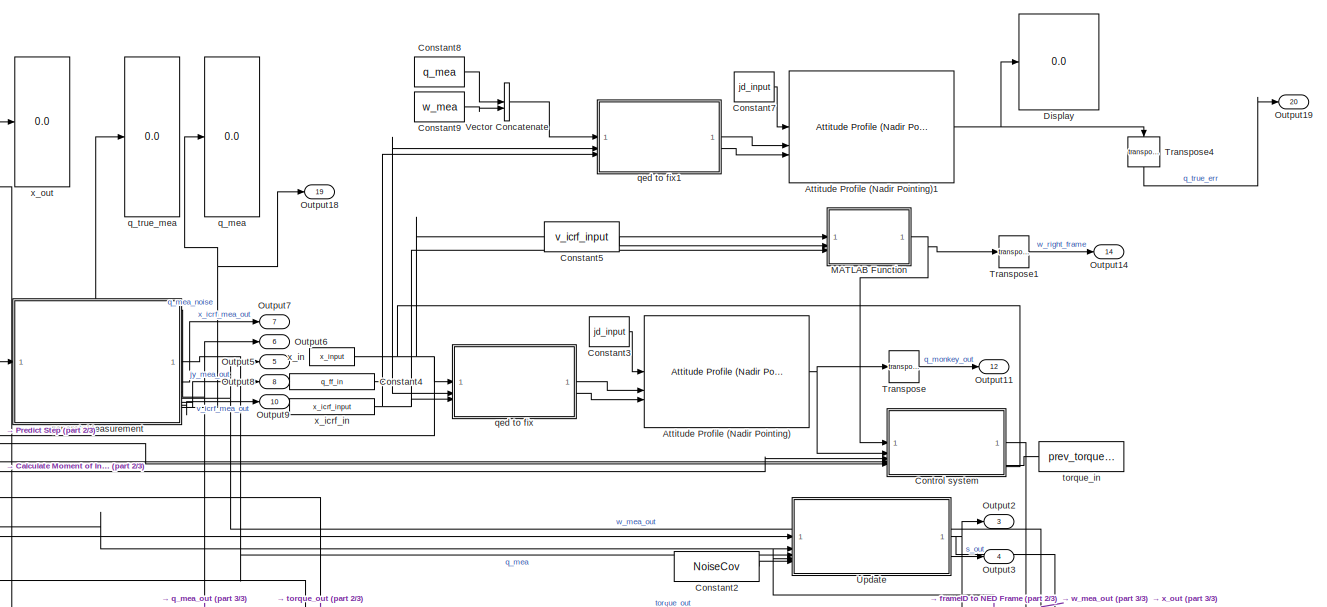
[diagram: root canvas - part 1/3, top center region]
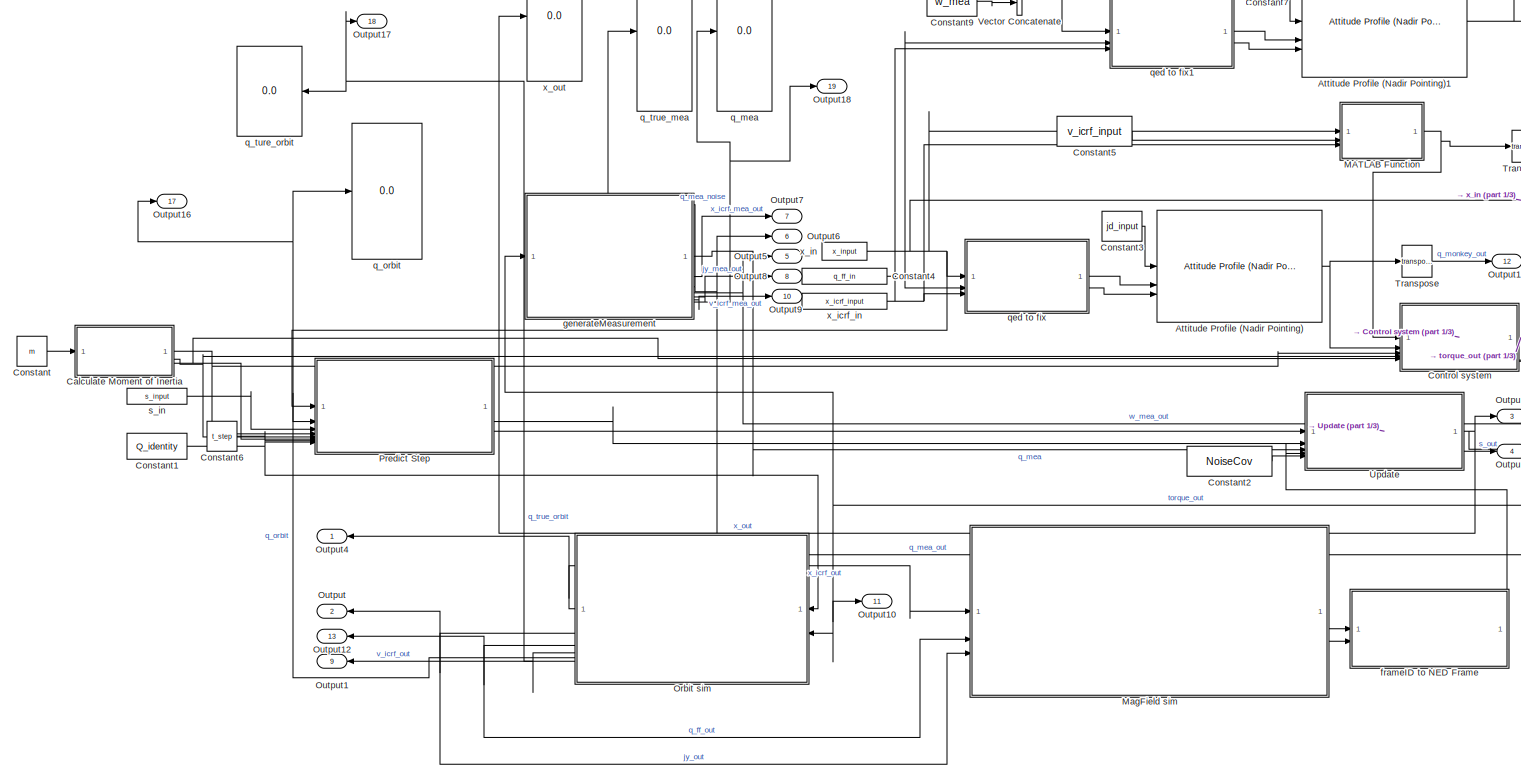
[diagram: root canvas - part 2/3, full width, middle band]
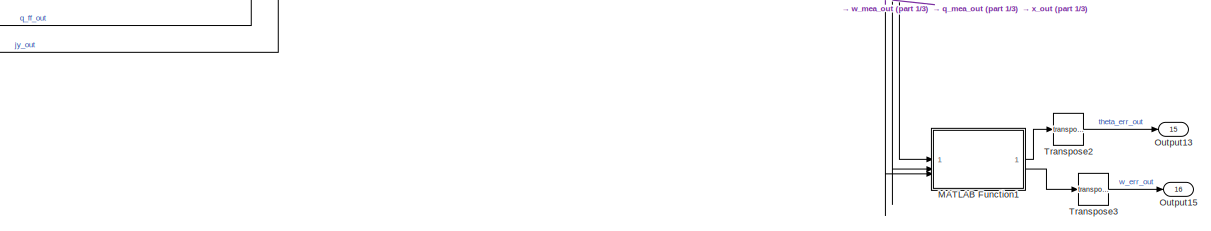
[diagram: root canvas - part 3/3, bottom right region]
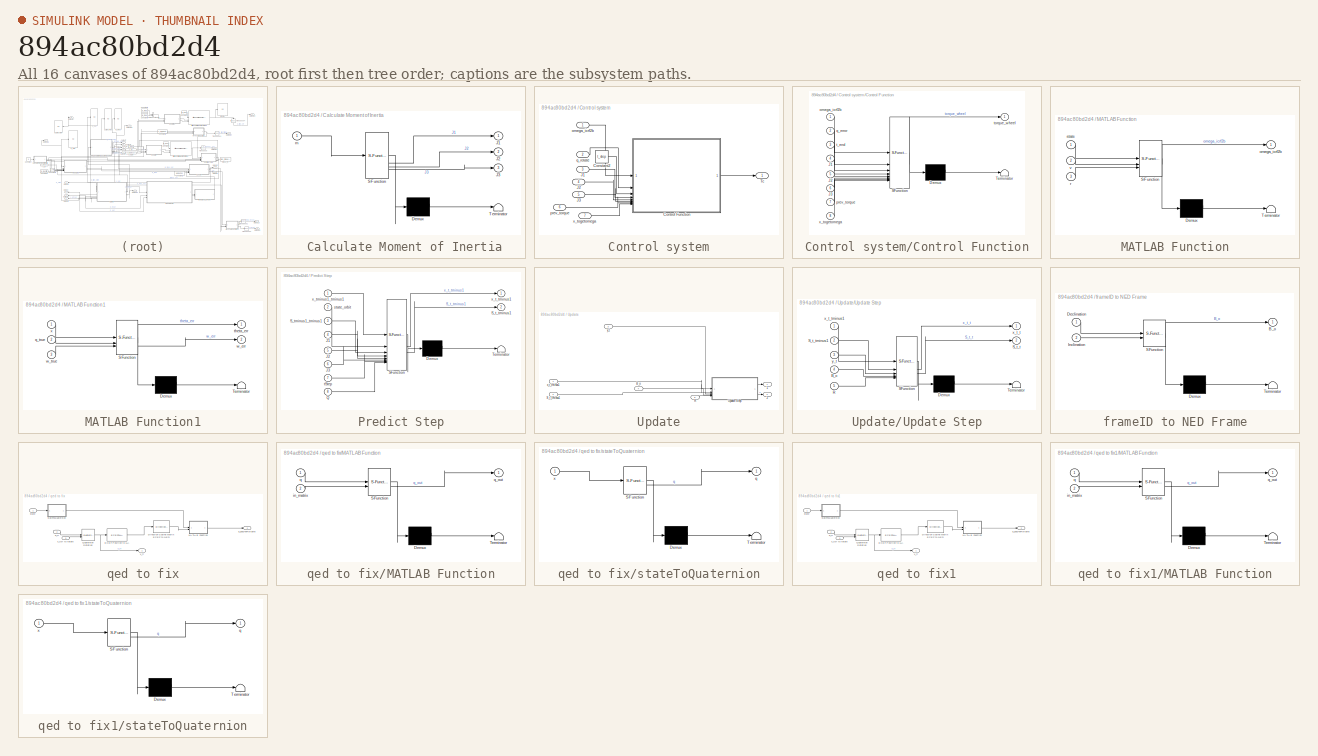
[diagram: thumbnail index - all 16 canvases of the model, root first then tree order]
MODEL slx_894ac80bd2d4
KIND model
CONFIG AbsTol = auto
CONFIG EnableMultiTasking = off
CONFIG FixedStep = 0.05
CONFIG MaxStep = auto
CONFIG MinStep = auto
CONFIG RelTol = 1e-3
CONFIG SampleTimeConstraint = Unconstrained
CONFIG SolverName = FixedStepAuto
CONFIG StartTime = 0.0
CONFIG StopTime = 0.05
WORKSPACE source: mxarray member
WORKSPACE Delta_t = 0.1
WORKSPACE J1 = 0.833333333333
WORKSPACE J2 = 1.08333333333
WORKSPACE J3 = 0.416666666667
WORKSPACE NoiseCov = [0.5 0 0 0 0 0 0 0.5 0 0 0 0 ... (36 elements, 6x6)]
WORKSPACE Orbit_Incl = 51.6
WORKSPACE Q_identity = [0.05 0 0 0 0 0 0 0 0.05 0 0 0 ... (49 elements, 7x7)]
WORKSPACE Sig: Simulink.Signal (value not decoded)
WORKSPACE Sig1: Simulink.Signal (value not decoded)
WORKSPACE controlRun = 1
WORKSPACE jd_input = 2458850.00006
WORKSPACE m = 100
WORKSPACE n = 7
WORKSPACE prev_torque_input = [4.02125178476e-05 -0.000240074266532 0.000969921285444]
WORKSPACE q_ff_in = [0.768162333731 -0.000607721012165 0.00073835510125 -0.64025441392]
WORKSPACE q_mea = [0.201779427007 -0.600440780835 -0.499157225709 -0.59126812494]
WORKSPACE s_input = [0.0589841167561 0.00581351479597 0.00668594935891 -0.00630732370495 0.000663483023899 0.00184880164458 0.000570366934632 0.00581351479597 0.0937594050574 0.0387635496011 -0.0430050360951 0.000555134956355 ... (49 elements, 7x7)]
WORKSPACE s_input_cons = [1.94870414 1.25588909 1.4416761 1.0780205 1.49168854 1.53894753 1.37981514 1.25588909 2.30599344 1.57766712 1.62980068 1.46050557 ... (49 elements, 7x7)]
WORKSPACE savedTorque = [0.000657725470141 -0.000240297847613 -0.000713900658607]
WORKSPACE t_step = 0.05
WORKSPACE v_icrf_input = [-949481.777156 -889776.036157 4371.77407199]
WORKSPACE w_mea = [0.000477892534013 0.0173144207751 0.0745768968359]
WORKSPACE x_icrf_input = [-3388291.56974 3592736.49121 -4663347.3899]
WORKSPACE x_icrf_input_cons = [3649700 3308200 -4676600]
WORKSPACE x_input = [0.411501608148 -0.308732372219 -0.291057996427 -0.806620103613 -0.492262126493 0.179846356615 0.534305378558]
WORKSPACE x_input_cons = [0.2 0.6 0.5 0.59160797831 0.1 0.4 0.9]
BLOCK [SubSystem]  Calculate Moment of Inertia
  ErrorFcn = Stateflow.Translate.translate
  PermitHierarchicalResolution = ExplicitOnly
  Priority = 10
  SFBlockType = MATLAB Function
  TreatAsAtomicUnit = on
BLOCK [Demux]  Calculate Moment of Inertia/ Demux 
  Outputs = 1
BLOCK [S-Function]  Calculate Moment of Inertia/ SFunction 
  EnableBusSupport = on
  FunctionName = sf_sfun
  PortCounts = [1 4]
  SFcnIsStateOwnerBlock = off
  SFunctionDeploymentMode = off
  Tag = Stateflow S-Function 12
BLOCK [Terminator]  Calculate Moment of Inertia/ Terminator 
BLOCK [Outport]  Calculate Moment of Inertia/J1
BLOCK [Outport]  Calculate Moment of Inertia/J2
  Port = 2
BLOCK [Outport]  Calculate Moment of Inertia/J3
  Port = 3
BLOCK [Inport]  Calculate Moment of Inertia/m
BLOCK [Reference] Attitude Profile (Nadir Pointing)  REF=aerolibsatdyn/Attitude Profile
(Nadir Pointing)
  Priority = 3
  SourceBlock = aerolibsatdyn/Attitude Profile\n(Nadir Pointing)
  SourceType = Attitude Profile
BLOCK [Reference] Attitude Profile (Nadir Pointing)1  REF=aerolibsatdyn/Attitude Profile
(Nadir Pointing)
  Priority = 3
  SourceBlock = aerolibsatdyn/Attitude Profile\n(Nadir Pointing)
  SourceType = Attitude Profile
BLOCK [Constant] Constant
  Value = m
BLOCK [Constant] Constant1
  Value = Q_identity
BLOCK [Constant] Constant2
  Value = NoiseCov
BLOCK [Constant] Constant3
  Value = jd_input
BLOCK [Constant] Constant4
  Value = q_ff_in
BLOCK [Constant] Constant5
  Value = v_icrf_input
BLOCK [Constant] Constant6
  Value = t_step
BLOCK [Constant] Constant7
  Value = jd_input
BLOCK [Constant] Constant8
  Value = q_mea
BLOCK [Constant] Constant9
  Value = w_mea
BLOCK [SubSystem] Control system
  PortSchema = {"entries":[{"content":{"sides":[{"content":{"connectorIds":["In1","In2","In3","In4","In5"]},"type":"ConnectorPlacement.EquallySpacedRectSide","uuid":"8eb5f269-cc65-4267-936a-9f0f4ccd4d18"},{"content":{"connectorIds":["Out1","In6","In7"],"side":"RIGHT"},"type":"ConnectorPlacement.EquallySpacedRectSide","uuid":"3df96c14-e4ae-45ba-8fc0-de3a9fdcf55a"},{"content":{"side":"TOP"},"type":"ConnectorPlacem...<+258ch>
  Priority = 4
BLOCK [Constant] Control system/Constant2
  Value = t_step
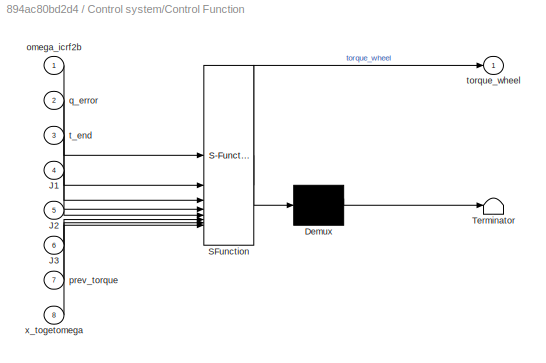
BLOCK [SubSystem] Control system/Control Function
  ErrorFcn = Stateflow.Translate.translate
  PermitHierarchicalResolution = ExplicitOnly
  SFBlockType = MATLAB Function
  TreatAsAtomicUnit = on
BLOCK [Demux] Control system/Control Function/ Demux 
  Outputs = 1
BLOCK [S-Function] Control system/Control Function/ SFunction 
  EnableBusSupport = on
  FunctionName = sf_sfun
  PortCounts = [8 2]
  SFcnIsStateOwnerBlock = off
  SFunctionDeploymentMode = off
  Tag = Stateflow S-Function 15
BLOCK [Terminator] Control system/Control Function/ Terminator 
BLOCK [Inport] Control system/Control Function/J1
  Port = 4
BLOCK [Inport] Control system/Control Function/J2
  Port = 5
BLOCK [Inport] Control system/Control Function/J3
  Port = 6
BLOCK [Inport] Control system/Control Function/omega_icrf2b
BLOCK [Inport] Control system/Control Function/prev_torque
  Port = 7
BLOCK [Inport] Control system/Control Function/q_error
  Port = 2
BLOCK [Inport] Control system/Control Function/t_end
  Port = 3
BLOCK [Outport] Control system/Control Function/torque_wheel
BLOCK [Inport] Control system/Control Function/x_togetomega
  Port = 8
BLOCK [Inport] Control system/J1
  Port = 3
BLOCK [Inport] Control system/J2
  Port = 4
BLOCK [Inport] Control system/J3
  Port = 5
BLOCK [Outport] Control system/Tc
BLOCK [Inport] Control system/omega_icrf2b
BLOCK [Inport] Control system/prev_torque
  Port = 6
BLOCK [Inport] Control system/q_rotate
  Port = 2
BLOCK [Inport] Control system/x_togetomega
  Port = 7
BLOCK [Display] Display
  Commented = on
  Decimation = 1
BLOCK [SubSystem] MATLAB Function
  ErrorFcn = Stateflow.Translate.translate
  PermitHierarchicalResolution = ExplicitOnly
  SFBlockType = MATLAB Function
  TreatAsAtomicUnit = on
BLOCK [Demux] MATLAB Function/ Demux 
  Outputs = 1
BLOCK [S-Function] MATLAB Function/ SFunction 
  EnableBusSupport = on
  FunctionName = sf_sfun
  PortCounts = [3 2]
  SFcnIsStateOwnerBlock = off
  SFunctionDeploymentMode = off
  Tag = Stateflow S-Function 7
BLOCK [Terminator] MATLAB Function/ Terminator 
BLOCK [Outport] MATLAB Function/omega_icrf2b
BLOCK [Inport] MATLAB Function/r
  Port = 3
BLOCK [Inport] MATLAB Function/state
BLOCK [Inport] MATLAB Function/v
  Port = 2
BLOCK [SubSystem] MATLAB Function1
  ErrorFcn = Stateflow.Translate.translate
  PermitHierarchicalResolution = ExplicitOnly
  SFBlockType = MATLAB Function
  TreatAsAtomicUnit = on
BLOCK [Demux] MATLAB Function1/ Demux 
  Outputs = 1
BLOCK [S-Function] MATLAB Function1/ SFunction 
  EnableBusSupport = on
  FunctionName = sf_sfun
  PortCounts = [3 3]
  SFcnIsStateOwnerBlock = off
  SFunctionDeploymentMode = off
  Tag = Stateflow S-Function 8
BLOCK [Terminator] MATLAB Function1/ Terminator 
BLOCK [Inport] MATLAB Function1/q_true
  Port = 2
BLOCK [Outport] MATLAB Function1/theta_err
BLOCK [Outport] MATLAB Function1/w_err
  Port = 2
BLOCK [Inport] MATLAB Function1/w_true
  Port = 3
BLOCK [Inport] MATLAB Function1/x
BLOCK [SubSystem] MagField sim
  Priority = 8
  ReferencedSubsystem = MagField_sim
BLOCK [SubSystem] Orbit sim
  Priority = 7
  ReferencedSubsystem = Orbit_sim
BLOCK [Outport] Output
  Port = 2
BLOCK [Outport] Output1
  NameLocation = top
  Port = 9
BLOCK [Outport] Output10
  Port = 11
BLOCK [Outport] Output11
  Port = 12
BLOCK [Outport] Output12
  Port = 13
BLOCK [Outport] Output13
  Port = 15
BLOCK [Outport] Output14
  Port = 14
BLOCK [Outport] Output15
  Port = 16
BLOCK [Outport] Output16
  Port = 17
BLOCK [Outport] Output17
  Port = 18
BLOCK [Outport] Output18
  Port = 19
BLOCK [Outport] Output19
  Port = 20
BLOCK [Outport] Output2
  Port = 3
BLOCK [Outport] Output3
  Port = 4
BLOCK [Outport] Output4
BLOCK [Outport] Output5
  Port = 5
BLOCK [Outport] Output6
  Port = 6
BLOCK [Outport] Output7
  Port = 7
BLOCK [Outport] Output8
  Port = 8
BLOCK [Outport] Output9
  Port = 10
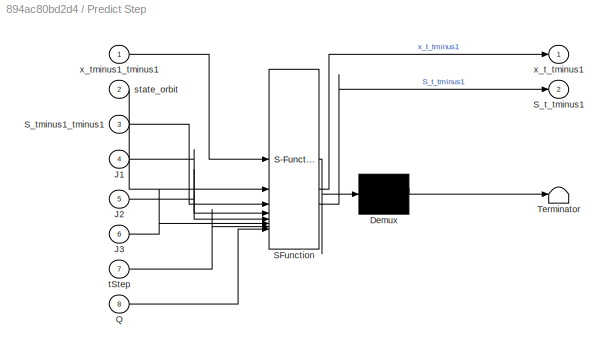
BLOCK [SubSystem] Predict Step
  ErrorFcn = Stateflow.Translate.translate
  PermitHierarchicalResolution = ExplicitOnly
  Priority = 11
  SFBlockType = MATLAB Function
  TreatAsAtomicUnit = on
BLOCK [Demux] Predict Step/ Demux 
  Outputs = 1
BLOCK [S-Function] Predict Step/ SFunction 
  EnableBusSupport = on
  FunctionName = sf_sfun
  PortCounts = [8 3]
  SFcnIsStateOwnerBlock = off
  SFunctionDeploymentMode = off
  Tag = Stateflow S-Function 2
BLOCK [Terminator] Predict Step/ Terminator 
BLOCK [Inport] Predict Step/J1
  Port = 4
BLOCK [Inport] Predict Step/J2
  Port = 5
BLOCK [Inport] Predict Step/J3
  Port = 6
BLOCK [Inport] Predict Step/Q
  Port = 8
BLOCK [Outport] Predict Step/S_t_tminus1
  Port = 2
BLOCK [Inport] Predict Step/S_tminus1_tminus1
  Port = 3
BLOCK [Inport] Predict Step/state_orbit
  Port = 2
BLOCK [Inport] Predict Step/tStep
  Port = 7
BLOCK [Outport] Predict Step/x_t_tminus1
BLOCK [Inport] Predict Step/x_tminus1_tminus1
BLOCK [Math] Transpose
  Operator = transpose
BLOCK [Math] Transpose1
  Operator = transpose
BLOCK [Math] Transpose2
  Operator = transpose
BLOCK [Math] Transpose3
  Operator = transpose
BLOCK [Math] Transpose4
  NameLocation = left
  Operator = transpose
BLOCK [SubSystem] Update
  Priority = 12
BLOCK [Outport] Update/1
BLOCK [Outport] Update/2
  Port = 2
BLOCK [Inport] Update/B_o
  Port = 4
BLOCK [Inport] Update/R
  Port = 5
BLOCK [Inport] Update/S_t_tminus1
  Port = 2
BLOCK [SubSystem] Update/Update Step
  ErrorFcn = Stateflow.Translate.translate
  PermitHierarchicalResolution = ExplicitOnly
  SFBlockType = MATLAB Function
  TreatAsAtomicUnit = on
BLOCK [Demux] Update/Update Step/ Demux 
  Outputs = 1
BLOCK [S-Function] Update/Update Step/ SFunction 
  EnableBusSupport = on
  FunctionName = sf_sfun
  PortCounts = [5 3]
  SFcnIsStateOwnerBlock = off
  SFunctionDeploymentMode = off
  Tag = Stateflow S-Function 1
BLOCK [Terminator] Update/Update Step/ Terminator 
BLOCK [Inport] Update/Update Step/B_o
  Port = 4
BLOCK [Inport] Update/Update Step/R
  Port = 5
BLOCK [Outport] Update/Update Step/S_t_t
  Port = 2
BLOCK [Inport] Update/Update Step/S_t_tminus1
  Port = 2
BLOCK [Outport] Update/Update Step/x_t_t
BLOCK [Inport] Update/Update Step/x_t_tminus1
BLOCK [Inport] Update/Update Step/y_t
  Port = 3
BLOCK [Inport] Update/x_t_tminus1
BLOCK [Inport] Update/y_t
  Port = 3
BLOCK [Concatenate] Vector Concatenate
BLOCK [SubSystem] frameID to NED Frame
  ErrorFcn = Stateflow.Translate.translate
  PermitHierarchicalResolution = ExplicitOnly
  Priority = 9
  SFBlockType = MATLAB Function
  TreatAsAtomicUnit = on
BLOCK [Demux] frameID to NED Frame/ Demux 
  Outputs = 1
BLOCK [S-Function] frameID to NED Frame/ SFunction 
  EnableBusSupport = on
  FunctionName = sf_sfun
  PortCounts = [2 2]
  SFcnIsStateOwnerBlock = off
  SFunctionDeploymentMode = off
  Tag = Stateflow S-Function 5
BLOCK [Terminator] frameID to NED Frame/ Terminator 
BLOCK [Outport] frameID to NED Frame/B_o
BLOCK [Inport] frameID to NED Frame/Declination
BLOCK [Inport] frameID to NED Frame/Inclination
  Port = 2
BLOCK [SubSystem] generateMeasurement
  Priority = 5
  ReferencedSubsystem = Measurement_sim
BLOCK [Display] q_mea
  Commented = on
  Decimation = 1
BLOCK [Display] q_orbit
  Commented = on
  Decimation = 1
BLOCK [Display] q_true_mea
  Commented = on
  Decimation = 1
BLOCK [Display] q_ture_orbit
  Commented = on
  Decimation = 1
  NameLocation = top
BLOCK [SubSystem] qed to fix
  Priority = 2
BLOCK [Reference] qed to fix/Direction Cosine Matrix ECEF to NED  REF=aerolibtransform2/Direction Cosine Matrix
ECEF to NED
  SourceBlock = aerolibtransform2/Direction Cosine Matrix\nECEF to NED
  SourceType = DCM ECEF to NED
BLOCK [ECEF2LLA] qed to fix/ECEF Position to LLA
BLOCK [SubSystem] qed to fix/MATLAB Function
  ErrorFcn = Stateflow.Translate.translate
  PermitHierarchicalResolution = ExplicitOnly
  SFBlockType = MATLAB Function
  TreatAsAtomicUnit = on
BLOCK [Demux] qed to fix/MATLAB Function/ Demux 
  Outputs = 1
BLOCK [S-Function] qed to fix/MATLAB Function/ SFunction 
  EnableBusSupport = on
  FunctionName = sf_sfun
  PortCounts = [2 2]
  SFcnIsStateOwnerBlock = off
  SFunctionDeploymentMode = off
  Tag = Stateflow S-Function 3
BLOCK [Terminator] qed to fix/MATLAB Function/ Terminator 
BLOCK [Inport] qed to fix/MATLAB Function/in_matrix
  Port = 2
BLOCK [Inport] qed to fix/MATLAB Function/q
BLOCK [Outport] qed to fix/MATLAB Function/q_out
BLOCK [Reference] qed to fix/Quaternion Rotation  REF=aerolibutil/Quaternion
Rotation
  SourceBlock = aerolibutil/Quaternion\nRotation
  SourceType = Quaternion Rotation
BLOCK [Outport] qed to fix/q_bodyToFixframe
  Port = 2
BLOCK [Inport] qed to fix/q_ff
  Port = 2
BLOCK [Inport] qed to fix/state
BLOCK [SubSystem] qed to fix/stateToQuaternion
  ErrorFcn = Stateflow.Translate.translate
  PermitHierarchicalResolution = ExplicitOnly
  SFBlockType = MATLAB Function
  TreatAsAtomicUnit = on
BLOCK [Demux] qed to fix/stateToQuaternion/ Demux 
  Outputs = 1
BLOCK [S-Function] qed to fix/stateToQuaternion/ SFunction 
  EnableBusSupport = on
  FunctionName = sf_sfun
  PortCounts = [1 2]
  SFcnIsStateOwnerBlock = off
  SFunctionDeploymentMode = off
  Tag = Stateflow S-Function 4
BLOCK [Terminator] qed to fix/stateToQuaternion/ Terminator 
BLOCK [Outport] qed to fix/stateToQuaternion/q
BLOCK [Inport] qed to fix/stateToQuaternion/x
BLOCK [Outport] qed to fix/x_ff
BLOCK [Inport] qed to fix/x_icrf to rotate
  Port = 3
BLOCK [SubSystem] qed to fix1
  Priority = 2
BLOCK [Reference] qed to fix1/Direction Cosine Matrix ECEF to NED  REF=aerolibtransform2/Direction Cosine Matrix
ECEF to NED
  SourceBlock = aerolibtransform2/Direction Cosine Matrix\nECEF to NED
  SourceType = DCM ECEF to NED
BLOCK [ECEF2LLA] qed to fix1/ECEF Position to LLA
BLOCK [SubSystem] qed to fix1/MATLAB Function
  ErrorFcn = Stateflow.Translate.translate
  PermitHierarchicalResolution = ExplicitOnly
  SFBlockType = MATLAB Function
  TreatAsAtomicUnit = on
BLOCK [Demux] qed to fix1/MATLAB Function/ Demux 
  Outputs = 1
BLOCK [S-Function] qed to fix1/MATLAB Function/ SFunction 
  EnableBusSupport = on
  FunctionName = sf_sfun
  PortCounts = [2 2]
  SFcnIsStateOwnerBlock = off
  SFunctionDeploymentMode = off
  Tag = Stateflow S-Function 19
BLOCK [Terminator] qed to fix1/MATLAB Function/ Terminator 
BLOCK [Inport] qed to fix1/MATLAB Function/in_matrix
  Port = 2
BLOCK [Inport] qed to fix1/MATLAB Function/q
BLOCK [Outport] qed to fix1/MATLAB Function/q_out
BLOCK [Reference] qed to fix1/Quaternion Rotation  REF=aerolibutil/Quaternion
Rotation
  SourceBlock = aerolibutil/Quaternion\nRotation
  SourceType = Quaternion Rotation
BLOCK [Outport] qed to fix1/q_bodyToFixframe
  Port = 2
BLOCK [Inport] qed to fix1/q_ff
  Port = 2
BLOCK [Inport] qed to fix1/state
BLOCK [SubSystem] qed to fix1/stateToQuaternion
  ErrorFcn = Stateflow.Translate.translate
  PermitHierarchicalResolution = ExplicitOnly
  SFBlockType = MATLAB Function
  TreatAsAtomicUnit = on
BLOCK [Demux] qed to fix1/stateToQuaternion/ Demux 
  Outputs = 1
BLOCK [S-Function] qed to fix1/stateToQuaternion/ SFunction 
  EnableBusSupport = on
  FunctionName = sf_sfun
  PortCounts = [1 2]
  SFcnIsStateOwnerBlock = off
  SFunctionDeploymentMode = off
  Tag = Stateflow S-Function 20
BLOCK [Terminator] qed to fix1/stateToQuaternion/ Terminator 
BLOCK [Outport] qed to fix1/stateToQuaternion/q
BLOCK [Inport] qed to fix1/stateToQuaternion/x
BLOCK [Outport] qed to fix1/x_ff
BLOCK [Inport] qed to fix1/x_icrf to rotate
  Port = 3
BLOCK [Constant] s_in
  Priority = 1
  Value = s_input
BLOCK [Constant] torque_in
  NameLocation = top
  Value = prev_torque_input
BLOCK [Constant] x_icrf_in
  Value = x_icrf_input
BLOCK [Constant] x_in
  NameLocation = top
  Value = x_input
BLOCK [Display] x_out
  Commented = on
  Decimation = 1
NET  Calculate Moment of Inertia:1 -> Control system:3, Predict Step:4
NET  Calculate Moment of Inertia:2 -> Control system:4, Predict Step:5
NET  Calculate Moment of Inertia:3 -> Control system:5, Predict Step:6
NET Attitude Profile (Nadir Pointing)1:1 -> Display:1, Transpose4:1
NET Attitude Profile (Nadir Pointing):1 -> Control system:2, Transpose:1
NET Constant1:1 -> Orbit sim:1, Predict Step:8
LINE Constant2:1 -> Update:5
LINE Constant3:1 -> Attitude Profile (Nadir Pointing):1
NET Constant4:1 -> qed to fix1:2, qed to fix:2
LINE Constant5:1 -> MATLAB Function:2
LINE Constant6:1 -> Predict Step:7
LINE Constant7:1 -> Attitude Profile (Nadir Pointing)1:1
LINE Constant8:1 -> Vector Concatenate:1
LINE Constant9:1 -> Vector Concatenate:2
LINE Constant:1 ->  Calculate Moment of Inertia:1
LINE Control system/Constant2:1 -> Control system/Control Function:3
LINE Control system/Control Function:1 -> Control system/Tc:1
LINE Control system/J1:1 -> Control system/Control Function:4
LINE Control system/J2:1 -> Control system/Control Function:5
LINE Control system/J3:1 -> Control system/Control Function:6
LINE Control system/omega_icrf2b:1 -> Control system/Control Function:1
LINE Control system/prev_torque:1 -> Control system/Control Function:7
LINE Control system/q_rotate:1 -> Control system/Control Function:2
LINE Control system/x_togetomega:1 -> Control system/Control Function:8
NET Control system:1 -> Orbit sim:2, Output10:1, generateMeasurement:1
LINE MATLAB Function1:1 -> Transpose2:1
LINE MATLAB Function1:2 -> Transpose3:1
NET MATLAB Function:1 -> Control system:1, Transpose1:1
LINE MagField sim:3 -> frameID to NED Frame:1
LINE MagField sim:4 -> frameID to NED Frame:2
NET Orbit sim:1 -> MagField sim:1, Output4:1
NET Orbit sim:2 -> MagField sim:3, Output:1
NET Orbit sim:3 -> MagField sim:2, Output12:1
LINE Orbit sim:4 -> Output1:1
NET Orbit sim:5 -> Output16:1, Predict Step:2, q_orbit:1
NET Orbit sim:6 -> Output17:1, q_ture_orbit:1
LINE Predict Step:1 -> Update:1
LINE Predict Step:2 -> Update:2
LINE Transpose1:1 -> Output14:1
LINE Transpose2:1 -> Output13:1
LINE Transpose3:1 -> Output15:1
LINE Transpose4:1 -> Output19:1
LINE Transpose:1 -> Output11:1
LINE Update/B_o:1 -> Update/Update Step:4
LINE Update/R:1 -> Update/Update Step:5
LINE Update/S_t_tminus1:1 -> Update/Update Step:2
LINE Update/Update Step:1 -> Update/1:1
LINE Update/Update Step:2 -> Update/2:1
LINE Update/x_t_tminus1:1 -> Update/Update Step:1
LINE Update/y_t:1 -> Update/Update Step:3
NET Update:1 -> MATLAB Function1:1, Output2:1, x_out:1
LINE Update:2 -> Output3:1
LINE Vector Concatenate:1 -> qed to fix1:1
LINE frameID to NED Frame:1 -> Update:4
LINE generateMeasurement:1 -> Update:3
LINE generateMeasurement:2 -> Output7:1
NET generateMeasurement:3 -> MATLAB Function1:2, Output6:1, q_true_mea:1
NET generateMeasurement:4 -> MATLAB Function1:3, Output5:1
LINE generateMeasurement:5 -> Output8:1
LINE generateMeasurement:6 -> Output9:1
NET generateMeasurement:7 -> Output18:1, q_mea:1
LINE qed to fix/Direction Cosine Matrix ECEF to NED:1 -> qed to fix/MATLAB Function:2
LINE qed to fix/ECEF Position to LLA:1 -> qed to fix/Direction Cosine Matrix ECEF to NED:1
LINE qed to fix/MATLAB Function:1 -> qed to fix/q_bodyToFixframe:1
NET qed to fix/Quaternion Rotation:1 -> qed to fix/ECEF Position to LLA:1, qed to fix/x_ff:1
LINE qed to fix/q_ff:1 -> qed to fix/Quaternion Rotation:1
LINE qed to fix/state:1 -> qed to fix/stateToQuaternion:1
LINE qed to fix/stateToQuaternion:1 -> qed to fix/MATLAB Function:1
LINE qed to fix/x_icrf to rotate:1 -> qed to fix/Quaternion Rotation:2
LINE qed to fix1/Direction Cosine Matrix ECEF to NED:1 -> qed to fix1/MATLAB Function:2
LINE qed to fix1/ECEF Position to LLA:1 -> qed to fix1/Direction Cosine Matrix ECEF to NED:1
LINE qed to fix1/MATLAB Function:1 -> qed to fix1/q_bodyToFixframe:1
NET qed to fix1/Quaternion Rotation:1 -> qed to fix1/ECEF Position to LLA:1, qed to fix1/x_ff:1
LINE qed to fix1/q_ff:1 -> qed to fix1/Quaternion Rotation:1
LINE qed to fix1/state:1 -> qed to fix1/stateToQuaternion:1
LINE qed to fix1/stateToQuaternion:1 -> qed to fix1/MATLAB Function:1
LINE qed to fix1/x_icrf to rotate:1 -> qed to fix1/Quaternion Rotation:2
LINE qed to fix1:1 -> Attitude Profile (Nadir Pointing)1:2
LINE qed to fix1:2 -> Attitude Profile (Nadir Pointing)1:3
LINE qed to fix:1 -> Attitude Profile (Nadir Pointing):2
LINE qed to fix:2 -> Attitude Profile (Nadir Pointing):3
LINE s_in:1 -> Predict Step:3
LINE torque_in:1 -> Control system:6
NET x_icrf_in:1 -> MATLAB Function:3, qed to fix1:3, qed to fix:3
NET x_in:1 -> Control system:7, MATLAB Function:1, Predict Step:1, qed to fix:1
note: NET lines group one-source signal fan-out (src -> all destinations, sorted); 1:1 wires keep LINE
CHART Control system/Control Function states=1 transitions=1
  STATE_LABEL 'eML_blk_kernel()'
  STATE_LABEL 'SCRIPT:\nfunction torque_wheel = fcn(omega_icrf2b, q_error, t_end, J1, J2, J3, prev_torque, x_togetomega)\ncoder.extrinsic("get_param");\ncoder.extrinsic("getVariable");\ncoder.extrinsic("quat2angle");\n\nmdlWks = get_param(\'Kalman_FullSystem\',\'ModelWorkspace\');\nctrlRn = getVariable(mdlWks,\'controlRun\');\nif ~ctrlRn\n    %disp(\'enter Control\');\n\n    if(norm(x_togetomega(5:7)) > 0.15)\n        torque_wheel_...<+1250ch>'
CHART qed to fix1/MATLAB Function states=1 transitions=1
  STATE_LABEL 'eML_blk_kernel()'
  STATE_LABEL 'SCRIPT:\nfunction q_out= fcn(q, in_matrix)\ninv_m = inv(in_matrix);\nq_second = rotm2quat(inv_m);\nq_first = quatconj(q);\nq_out = transpose(quatmultiply(q_second,q_first));\n'
CHART qed to fix1/stateToQuaternion states=1 transitions=1
  STATE_LABEL 'eML_blk_kernel()'
  STATE_LABEL 'SCRIPT:\nfunction q = getq(x)\nq_temp = x(1:4);\nq = transpose(q_temp);\nend'
CHART Update/Update Step states=1 transitions=1
  STATE_LABEL 'eML_blk_kernel()'
  STATE_LABEL "SCRIPT:\nfunction [x_t_t, S_t_t] = update(x_t_tminus1, S_t_tminus1, y_t, B_o, R)\n\nH_out = H(x_t_tminus1, B_o);\nx_t_t = zeros(7,1);\n%Kalman Gain\n%temp=(H_out*S_t_tminus1*transpose(H_out) + R);\nK = S_t_tminus1 * transpose(H_out)/(H_out*S_t_tminus1*transpose(H_out) + R);\n%disp('update');\n%Update\n% temp5=y_t - h_t(x_t_tminus1, B_o);\n% temp2=norm(y_t - h_t(x_t_tminus1, B_o));\n% temp4= K * (y_t - h_t(x_t...<+533ch>"
CHART Predict Step states=1 transitions=1
  STATE_LABEL 'eML_blk_kernel()'
  STATE_LABEL "SCRIPT:\nfunction [x_t_tminus1, S_t_tminus1]= predict(x_tminus1_tminus1,state_orbit, S_tminus1_tminus1, J1,J2,J3, tStep, Q)\n\n\nx_t_tminus1 = state_orbit; %use state from orbit with noise\n% x_t_tminus1 = feval(f_t,x_tminus1_tminus1);\nF_tminus1 = F(x_tminus1_tminus1, J1,J2,J3,tStep);\n%disp('predict');\nS_t_tminus1 = F_tminus1 * S_tminus1_tminus1 * transpose(F_tminus1) +Q;"
CHART qed to fix/MATLAB Function states=1 transitions=1
  STATE_LABEL 'eML_blk_kernel()'
  STATE_LABEL 'SCRIPT:\nfunction q_out= fcn(q, in_matrix)\ninv_m = inv(in_matrix);\nq_second = rotm2quat(inv_m);\nq_first = quatconj(q);\nq_out = transpose(quatmultiply(q_second,q_first));\n'
CHART qed to fix/stateToQuaternion states=1 transitions=1
  STATE_LABEL 'eML_blk_kernel()'
  STATE_LABEL 'SCRIPT:\nfunction q = getq(x)\nq_temp = x(1:4);\nq = transpose(q_temp);\nend'
CHART frameID to NED Frame states=1 transitions=1
  STATE_LABEL 'eML_blk_kernel()'
  STATE_LABEL "SCRIPT:\nfunction B_o= ID2NED(Declination,Inclination)\n\n[Down_dir,Omega_dir,Other_dir] = MagID2NED(Inclination,Declination);\nB_o = [Down_dir;Omega_dir;Other_dir]/norm([Down_dir,Omega_dir,Other_dir]);\n%disp('enter NED')\n\nend"
CHART MATLAB Function states=1 transitions=1
  STATE_LABEL 'eML_blk_kernel()'
  STATE_LABEL 'SCRIPT:\nfunction omega_icrf2b = omega_frame(state,v,r)\nomega_ned2b = state(5:7);\nomega_icrf2ned = -cross(r,v)/norm(r)^2;\nomega_icrf2b = omega_ned2b + omega_icrf2ned;'
CHART MATLAB Function1 states=1 transitions=1
  STATE_LABEL 'eML_blk_kernel()'
  STATE_LABEL 'SCRIPT:\nfunction [theta_err, w_err]= fcn(x, q_true, w_true)\ntheta_est = 2*acos(x(1));\ntheta_true = 2*acos(q_true(1));\ntheta_err = theta_est - theta_true;\nw_err = transpose(x(5:7))-w_true;'
CHART  Calculate Moment of Inertia states=1 transitions=1
  STATE_LABEL 'eML_blk_kernel()'
  STATE_LABEL 'SCRIPT:\nfunction [J1,J2,J3]=momentInertia(m)\nJ1 = m/120;\nJ2 = 13*m/1200;\nJ3 = 5*m/1200;\ncoder.extrinsic("get_param");\nmdlWks = get_param(\'Kalman_FullSystem\',\'ModelWorkspace\');\nassignin(mdlWks,"J1",J1)\nassignin(mdlWks,"J2",J2)\nassignin(mdlWks,"J3",J3)\nend'
CHART  states=0 transitions=0
CHART  states=0 transitions=0
CHART  states=0 transitions=0
CHART  states=0 transitions=0
CHART  states=0 transitions=0
CHART  states=0 transitions=0
CHART  states=0 transitions=0
CHART  states=0 transitions=0
CHART  states=0 transitions=0
CHART  states=0 transitions=0
CHART  states=0 transitions=0
